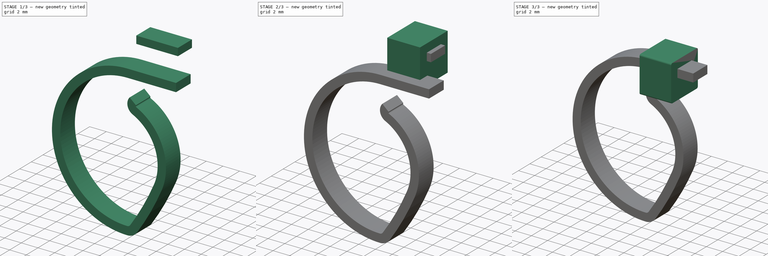
[diagram: build sequence overview — one tinted view per stage of 3, left to right]
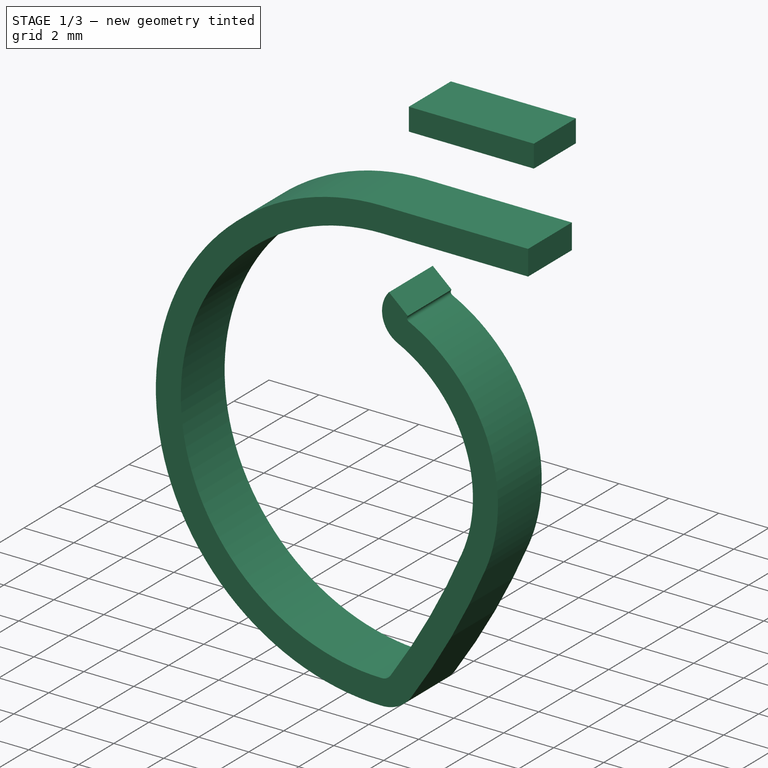
[diagram: stage 1 of 3 — iso view after this stage's code; geometry added in this stage tinted green]
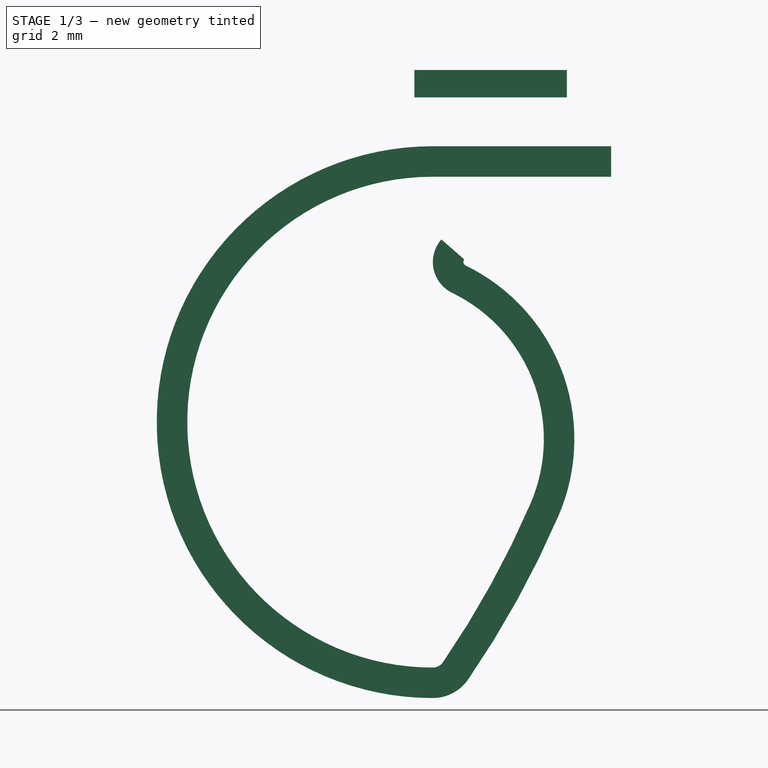
[diagram: stage 1 of 3 — front view after this stage's code; geometry added in this stage tinted green]
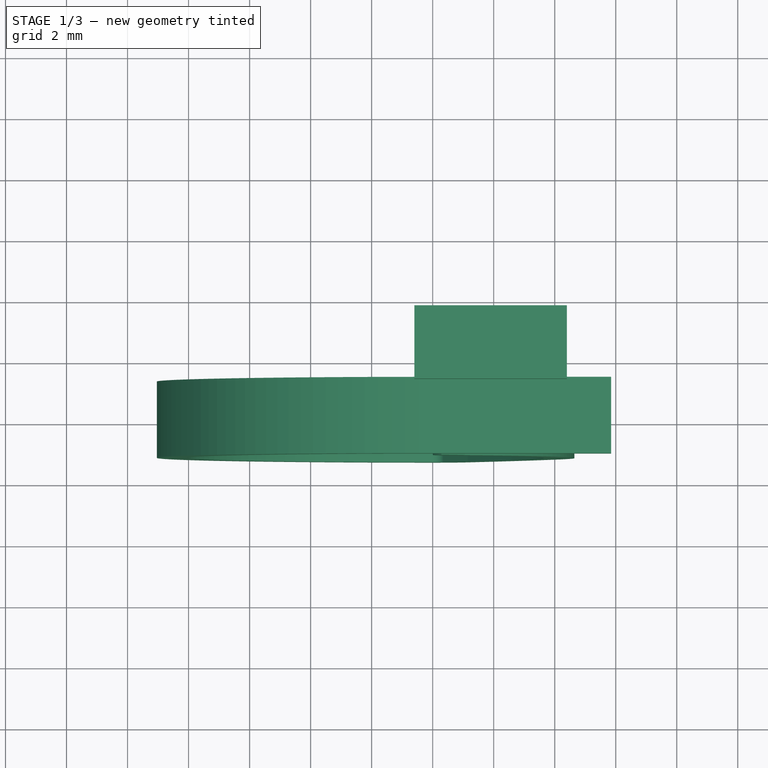
[diagram: stage 1 of 3 — top view after this stage's code; geometry added in this stage tinted green]
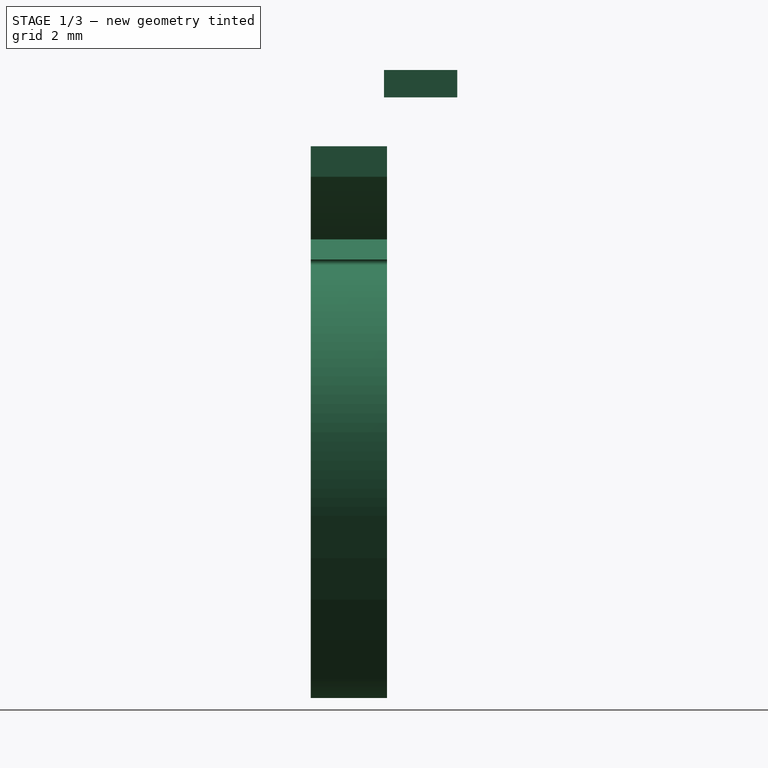
[diagram: stage 1 of 3 — right view after this stage's code; geometry added in this stage tinted green]
FCSTD DOCUMENT  (FreeCAD 0.16R6712 (Git))
Label: zip-tie
License: CreativeCommons Attribution-ShareAlike
LicenseURL: http://creativecommons.org/licenses/by-sa/4.0/
objects: Sketcher::SketchObject×2, Part::Box×2, Part::Cut×1, Part::Fillet×1, Part::Sweep×1, Part::Feature×1
note: 8 computed .brp shape members not serialized (recipe doc carries the construction recipe); baked Part::Feature solids carry a one-line shape summary decoded from their .brp

FEATURE [Part::Box] Box001  label="Würfel001"
  Height = 0.9
  Length = 5
  Placement = pos=(-0.6,1.15,2.6) rot=(0,0,1;0rad)
  Width = 2.4
FEATURE [Sketcher::SketchObject] Sketch019  label="zip-tie-path"
  Placement = pos=(0,0,0) rot=(1,0,0;1.5708rad)
  sketch-geometry (6):
    g0: LineSegment StartX=0 StartY=0 StartZ=0 EndX=5.85 EndY=0 EndZ=0
    g1: ArcOfCircle CenterX=0 CenterY=-8.04283 CenterZ=0 NormalX=0 NormalY=0 NormalZ=1 Radius=8.04283 StartAngle=1.5708 EndAngle=4.71239
    g2: ArcOfCircle CenterX=7.85e-10 CenterY=-15.671 CenterZ=0 NormalX=0 NormalY=0 NormalZ=1 Radius=0.414606 StartAngle=4.71239 EndAngle=5.68264
    g3: ArcOfCircle CenterX=-1.68301 CenterY=-8.60029 CenterZ=0 NormalX=0 NormalY=0 NormalZ=1 Radius=5.32677 StartAngle=5.87539 EndAngle=7.4025
    g4: ArcOfCircle CenterX=-25.0813 CenterY=1.50819 CenterZ=0 NormalX=0 NormalY=0 NormalZ=1 Radius=30.8152 StartAngle=5.68264 EndAngle=5.87539
    g5: ArcOfCircle CenterX=1.13195 CenterY=-2.79482 CenterZ=0 NormalX=0 NormalY=0 NormalZ=1 Radius=1.12517 StartAngle=2.42184 EndAngle=4.26091
  constraints (16):
    c: Horizontal(g0)
    c: DistanceY(g-1,g0) = 0
    c: DistanceX(g-1,g0) = 5.85
    c: PointOnObject(g0,g-2)
    c: Coincident(g1,g0)
    c: PointOnObject(g1,g-2)
    c: PointOnObject(g1,g-2)
    c: Coincident(g2,g1)
    c: Tangent(g1,g2)
    c: Coincident(g4,g2)
    c: Coincident(g4,g3)
    c: Tangent(g3,g4)
    c: Coincident(g5,g3)
    c: DistanceY(g1) = -16.0857
    c: Tangent(g2,g4)
    c: Tangent(g3,g5)
FEATURE [Part::Sweep] Sweep
  Frenet = false
  Sections = -> [Sketch006]
  Solid = true
  Spine = -> Sketch019 [Edge6,Edge5,Edge4,Edge3,Edge2,Edge1]
  Transition = 1
FEATURE [Part::Feature] Fillet_solid  label="z-Zip-Tie"
  shape: bbox 3.9 x 4.7 x 4.5 mm, 14 faces (baked)
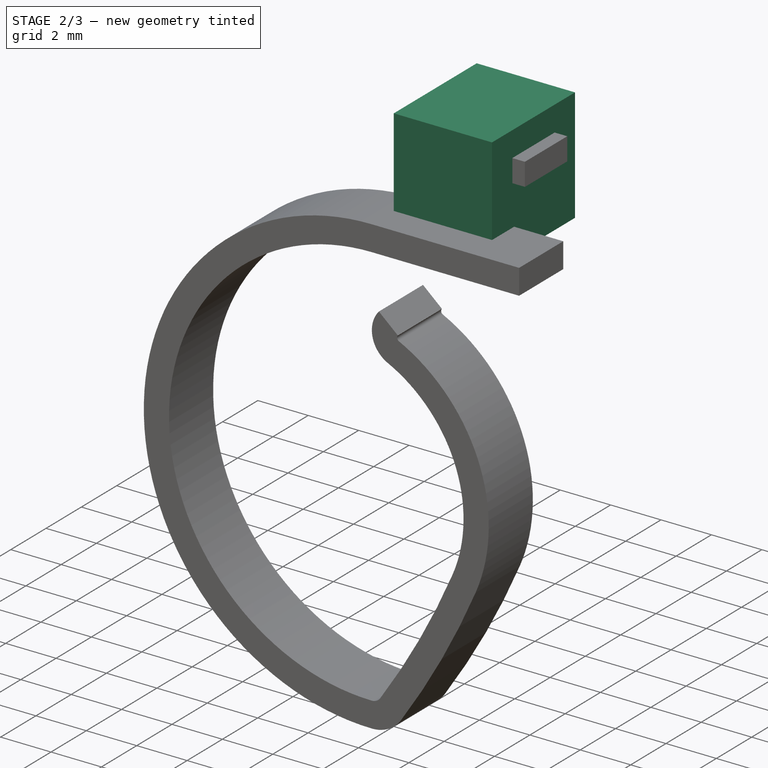
[diagram: stage 2 of 3 — iso view after this stage's code; geometry added in this stage tinted green]
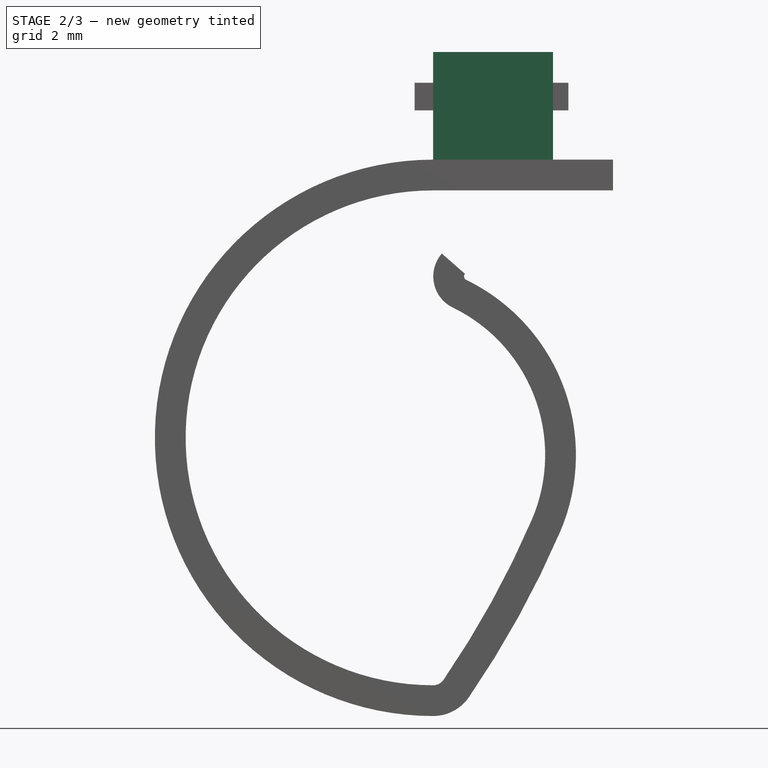
[diagram: stage 2 of 3 — front view after this stage's code; geometry added in this stage tinted green]
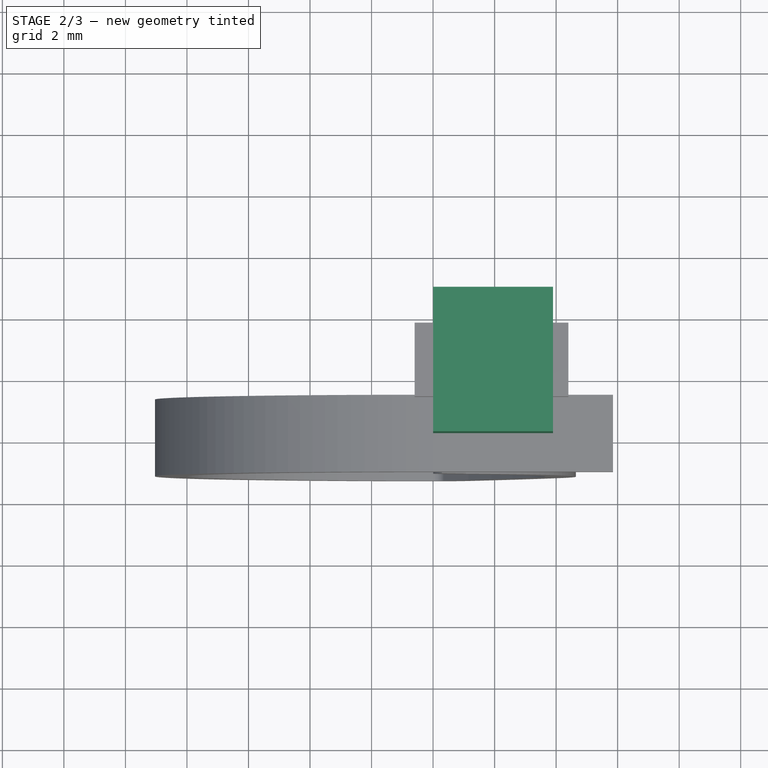
[diagram: stage 2 of 3 — top view after this stage's code; geometry added in this stage tinted green]
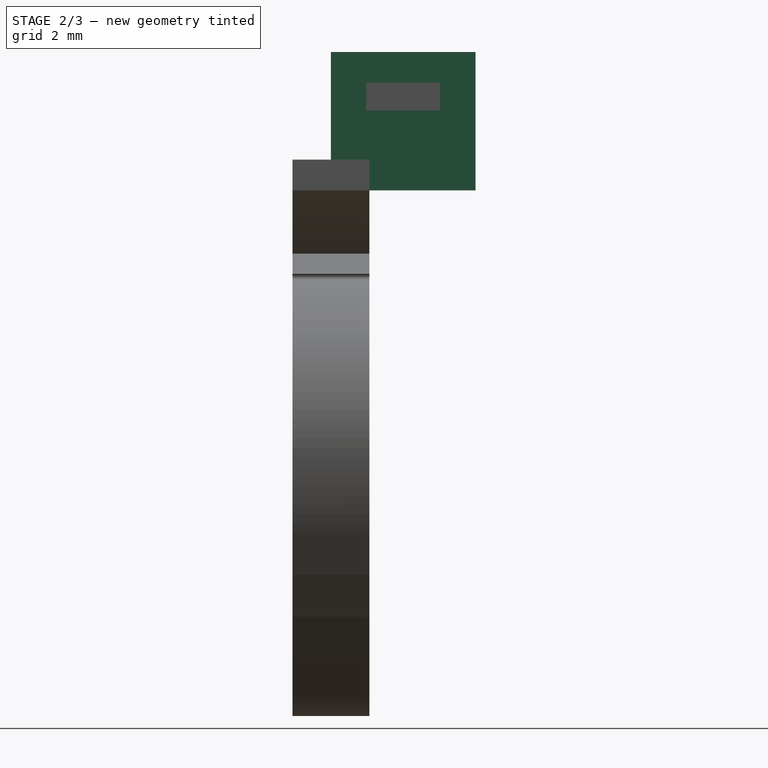
[diagram: stage 2 of 3 — right view after this stage's code; geometry added in this stage tinted green]
FEATURE [Sketcher::SketchObject] Sketch006  label="zip-tie-section"
  Placement = pos=(0,0,0.5) rot=(0.57735,0.57735,0.57735;2.0944rad)
  sketch-geometry (4):
    g0: LineSegment StartX=-1.25 StartY=0.5 StartZ=0 EndX=1.25 EndY=0.5 EndZ=0
    g1: LineSegment StartX=1.25 StartY=0.5 StartZ=0 EndX=1.25 EndY=-0.5 EndZ=0
    g2: LineSegment StartX=1.25 StartY=-0.5 StartZ=0 EndX=-1.25 EndY=-0.5 EndZ=0
    g3: LineSegment StartX=-1.25 StartY=-0.5 StartZ=0 EndX=-1.25 EndY=0.5 EndZ=0
  constraints (11):
    c: Coincident(g0,g1)
    c: Coincident(g1,g2)
    c: Coincident(g2,g3)
    c: Coincident(g3,g0)
    c: Horizontal(g0)
    c: Horizontal(g2)
    c: Vertical(g1)
    c: Vertical(g3)
    c: Symmetric(g0,g1,g-1)
    c: DistanceY(g1) = -1
    c: DistanceX(g0) = 2.5
FEATURE [Part::Box] Box  label="Würfel"
  Height = 4.5
  Length = 3.9
  Width = 4.7
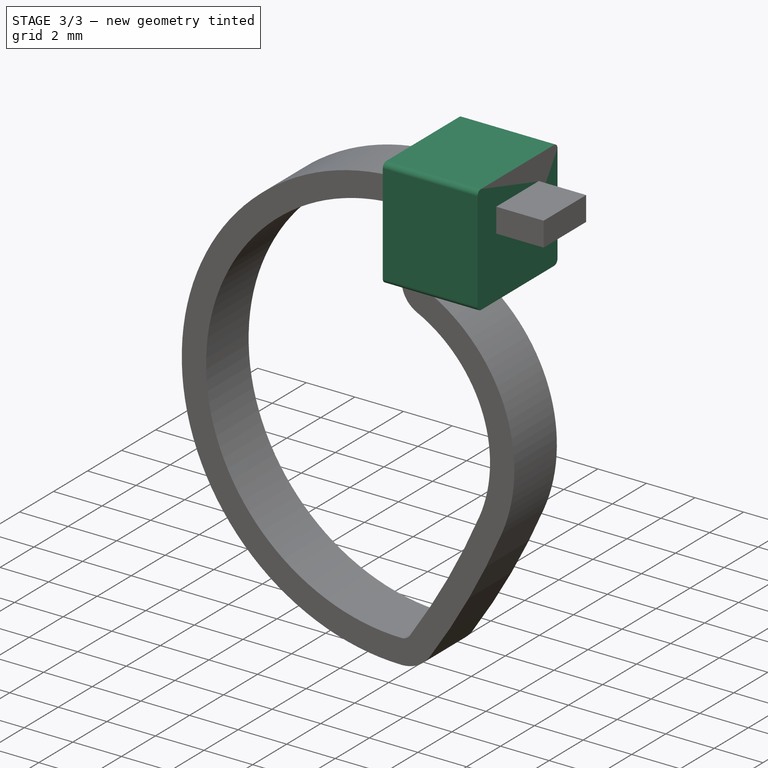
[diagram: stage 3 of 3 — iso view after this stage's code; geometry added in this stage tinted green]
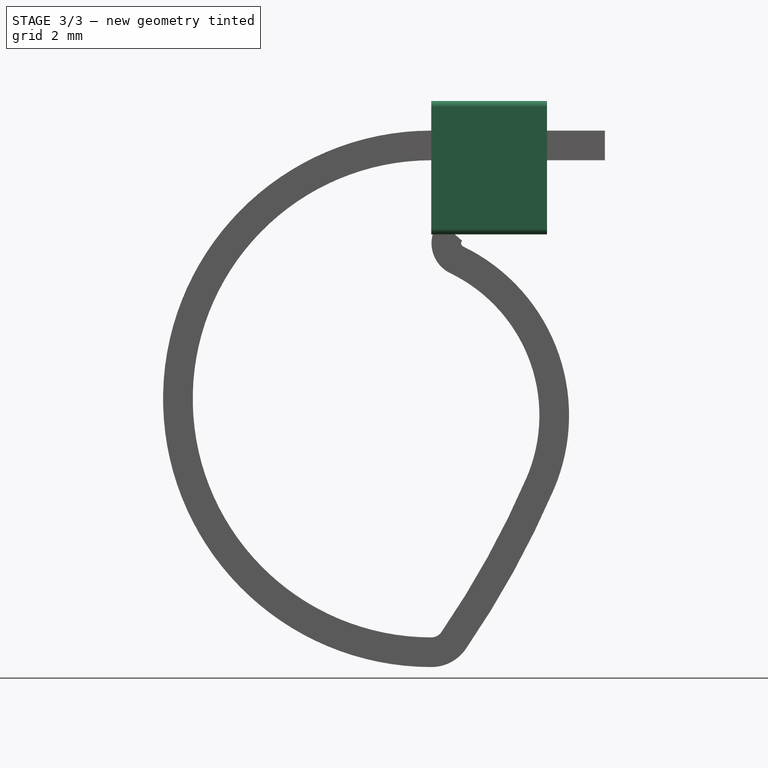
[diagram: stage 3 of 3 — front view after this stage's code; geometry added in this stage tinted green]
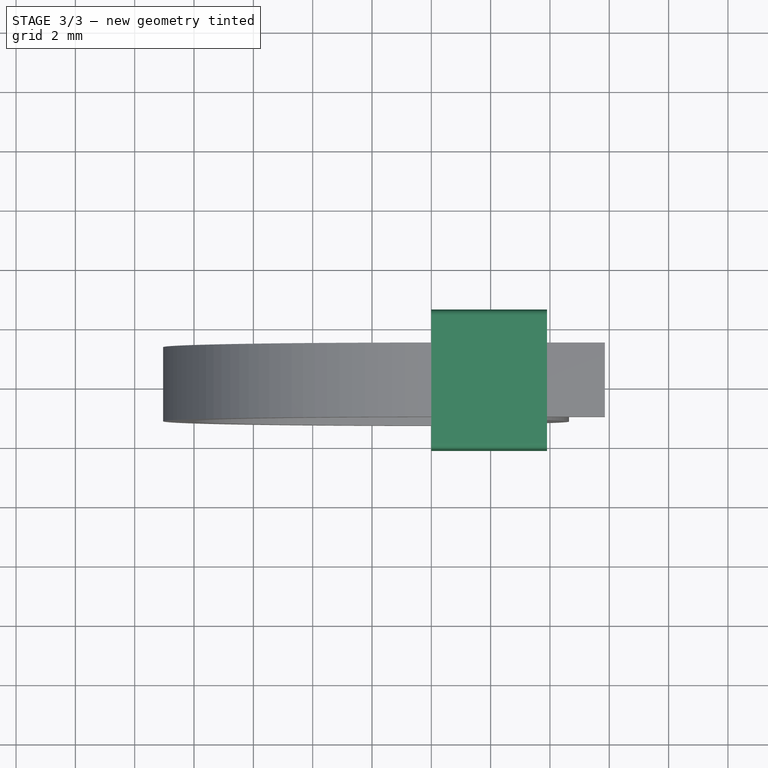
[diagram: stage 3 of 3 — top view after this stage's code; geometry added in this stage tinted green]
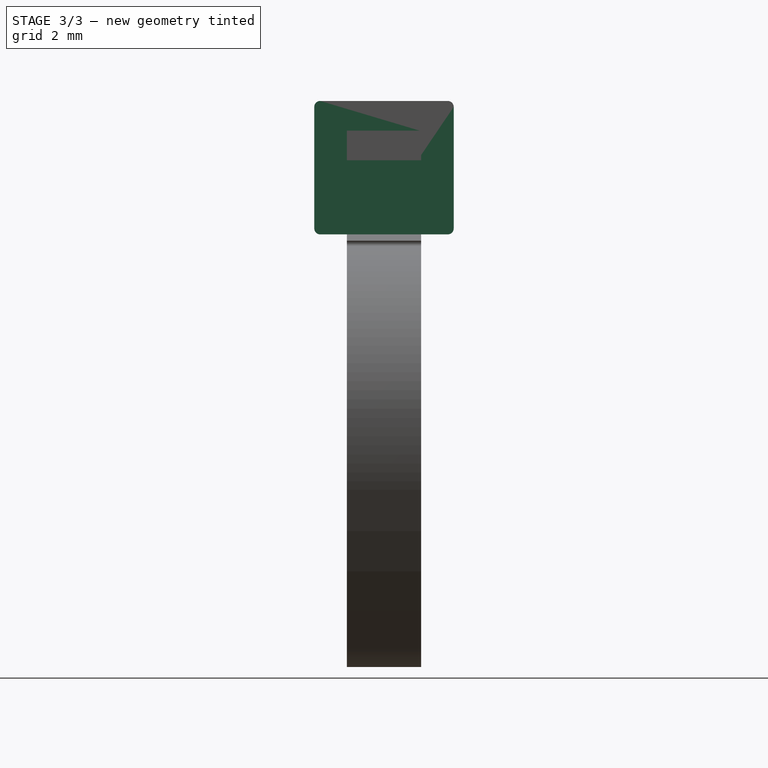
[diagram: stage 3 of 3 — right view after this stage's code; geometry added in this stage tinted green]
FEATURE [Part::Cut] Cut
  Base = -> Box
  Tool = -> Box001
FEATURE [Part::Fillet] Fillet
  Base = -> Cut
  Edges = 4 edges r=0.2: [Edge9,Edge11,Edge12,Edge14]
  Placement = pos=(0,-2.35,-2.5) rot=(0,0,1;0rad)
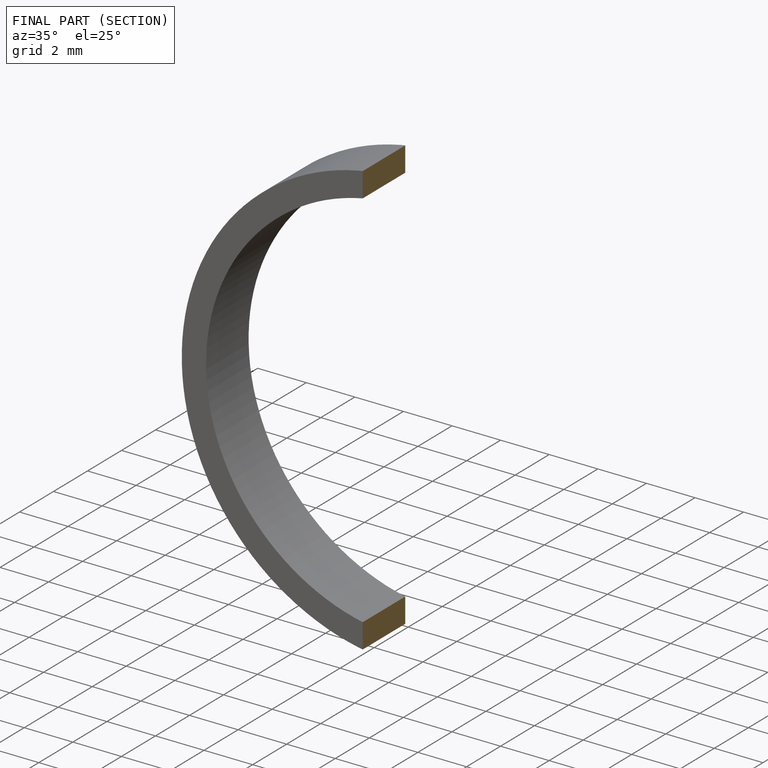
[diagram: finished part — half-section view (interior)]
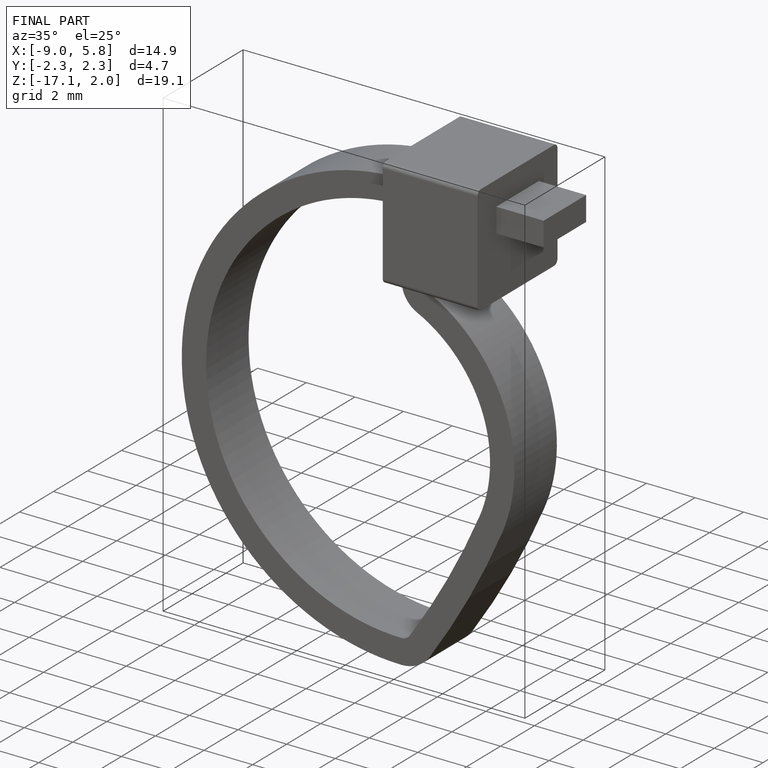
[diagram: finished part — iso view with bounding-box wireframe]
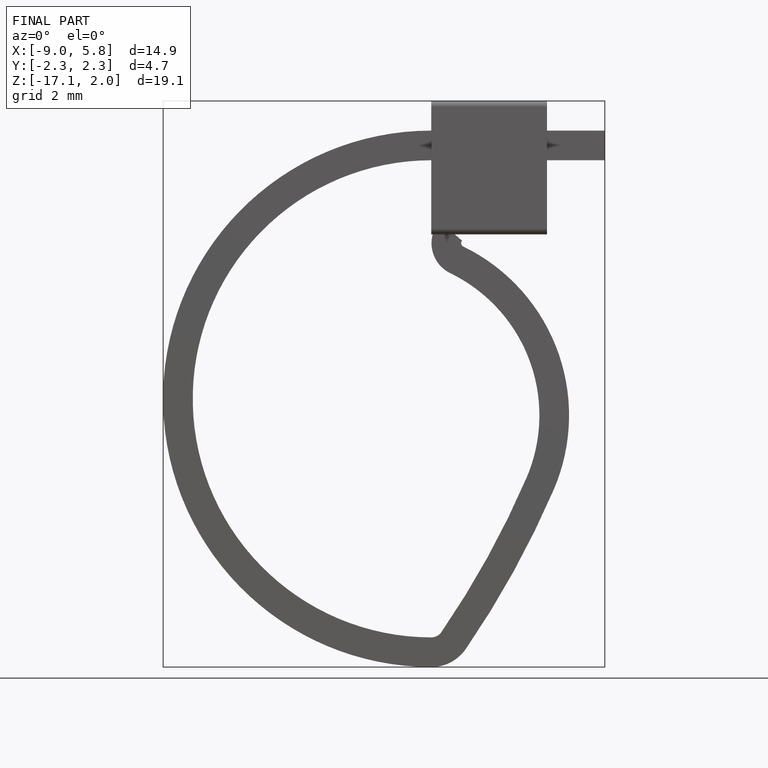
[diagram: finished part — front view with bounding-box wireframe]
